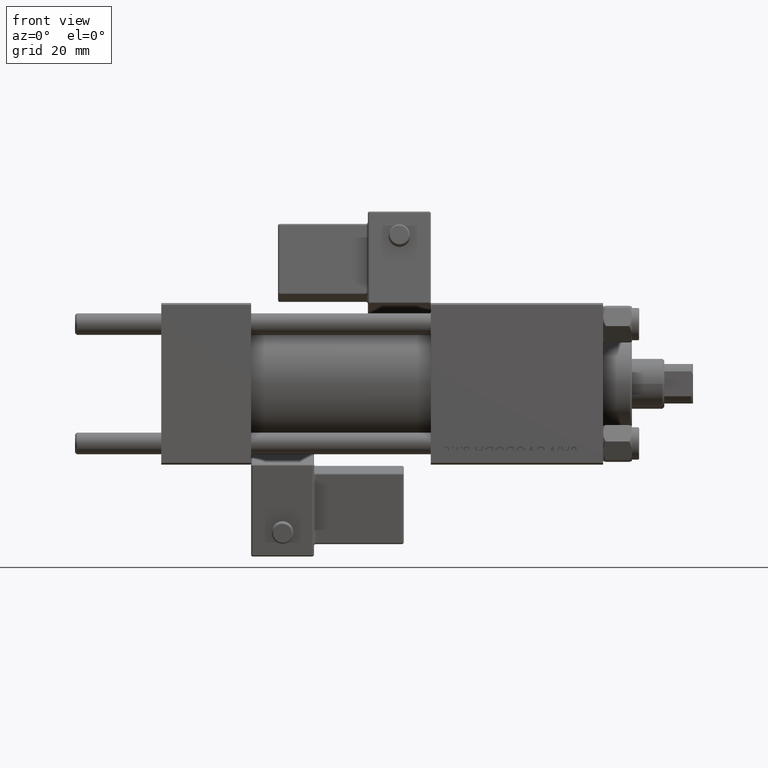
[diagram: clean part render]
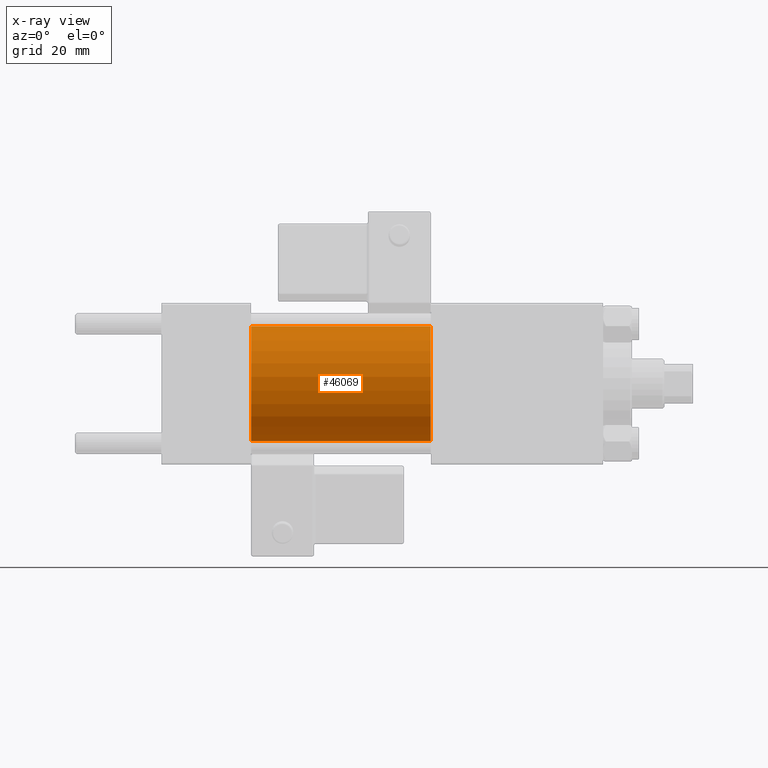
[diagram: x-ray — body ghosted, one internal face saturated and labeled with its STEP entity id]
A machine part, front view, then the same camera in x-ray: the body is ghosted and one INTERNAL B-rep face — a face not visible from any outside direction — is saturated and labeled: STEP entity #46069.
In plain terms, the highlighted cylindrical surface (partial cylindrical patch) has radius 16 mm, axis along (-1, -0, -0).
Its self-contained STEP definition (entity closure, byte-faithful):
#412 = CIRCLE ( 'NONE', #29967, 16.00000000000000000 ) ;
#2684 = CARTESIAN_POINT ( 'NONE',  ( 75.00000000000001421, 0.000000000000000000, 0.000000000000000000 ) ) ;
#3923 = VERTEX_POINT ( 'NONE', #24087 ) ;
#4604 = VECTOR ( 'NONE', #13573, 1000.000000000000000 ) ;
#5681 = CIRCLE ( 'NONE', #29347, 16.00000000000000000 ) ;
#6216 = EDGE_LOOP ( 'NONE', ( #52087, #18671, #34431, #32597 ) ) ;
#6421 = CYLINDRICAL_SURFACE ( 'NONE', #9270, 16.00000000000000000 ) ;
#7707 = VERTEX_POINT ( 'NONE', #48378 ) ;
#8277 = CARTESIAN_POINT ( 'NONE',  ( 25.00000000000000000, 1.959434878635765131E-15, -16.00000000000000000 ) ) ;
#8773 = EDGE_CURVE ( 'NONE', #7707, #12154, #5681, .T. ) ;
#9270 = AXIS2_PLACEMENT_3D ( 'NONE', #22568, #46878, #19397 ) ;
#10106 = CARTESIAN_POINT ( 'NONE',  ( 75.00000000000001421, 1.959434878635765131E-15, -16.00000000000000000 ) ) ;
#11171 = CARTESIAN_POINT ( 'NONE',  ( 75.00000000000001421, 1.959434878635765131E-15, -16.00000000000000000 ) ) ;
#12154 = VERTEX_POINT ( 'NONE', #11171 ) ;
#13573 = DIRECTION ( 'NONE',  ( -1.000000000000000000, -0.000000000000000000, -0.000000000000000000 ) ) ;
#18167 = LINE ( 'NONE', #23181, #44610 ) ;
#18671 = ORIENTED_EDGE ( 'NONE', *, *, #20267, .T. ) ;
#19397 = DIRECTION ( 'NONE',  ( 0.000000000000000000, 0.000000000000000000, 1.000000000000000000 ) ) ;
#20267 = EDGE_CURVE ( 'NONE', #12154, #27633, #46060, .T. ) ;
#22568 = CARTESIAN_POINT ( 'NONE',  ( 75.00000000000001421, 0.000000000000000000, 0.000000000000000000 ) ) ;
#23181 = CARTESIAN_POINT ( 'NONE',  ( 75.00000000000001421, 0.000000000000000000, 16.00000000000000000 ) ) ;
#23926 = EDGE_CURVE ( 'NONE', #3923, #27633, #412, .T. ) ;
#24087 = CARTESIAN_POINT ( 'NONE',  ( 25.00000000000000000, 0.000000000000000000, 16.00000000000000000 ) ) ;
#25128 = CARTESIAN_POINT ( 'NONE',  ( 25.00000000000000000, 0.000000000000000000, 0.000000000000000000 ) ) ;
#26531 = FACE_OUTER_BOUND ( 'NONE', #6216, .T. ) ;
#27022 = DIRECTION ( 'NONE',  ( 1.000000000000000000, 0.000000000000000000, 0.000000000000000000 ) ) ;
#27633 = VERTEX_POINT ( 'NONE', #8277 ) ;
#29081 = DIRECTION ( 'NONE',  ( 0.000000000000000000, 0.000000000000000000, -1.000000000000000000 ) ) ;
#29347 = AXIS2_PLACEMENT_3D ( 'NONE', #2684, #27022, #34412 ) ;
#29967 = AXIS2_PLACEMENT_3D ( 'NONE', #25128, #45475, #29081 ) ;
#32597 = ORIENTED_EDGE ( 'NONE', *, *, #42835, .F. ) ;
#34412 = DIRECTION ( 'NONE',  ( 0.000000000000000000, 0.000000000000000000, -1.000000000000000000 ) ) ;
#34431 = ORIENTED_EDGE ( 'NONE', *, *, #23926, .F. ) ;
#42835 = EDGE_CURVE ( 'NONE', #7707, #3923, #18167, .T. ) ;
#44610 = VECTOR ( 'NONE', #50152, 1000.000000000000000 ) ;
#45475 = DIRECTION ( 'NONE',  ( 1.000000000000000000, 0.000000000000000000, 0.000000000000000000 ) ) ;
#46060 = LINE ( 'NONE', #10106, #4604 ) ;
#46069 = ADVANCED_FACE ( 'NONE', ( #26531 ), #6421, .F. ) ;
#46878 = DIRECTION ( 'NONE',  ( -1.000000000000000000, -0.000000000000000000, -0.000000000000000000 ) ) ;
#48378 = CARTESIAN_POINT ( 'NONE',  ( 75.00000000000001421, 0.000000000000000000, 16.00000000000000000 ) ) ;
#50152 = DIRECTION ( 'NONE',  ( -1.000000000000000000, -0.000000000000000000, -0.000000000000000000 ) ) ;
#52087 = ORIENTED_EDGE ( 'NONE', *, *, #8773, .T. ) ;